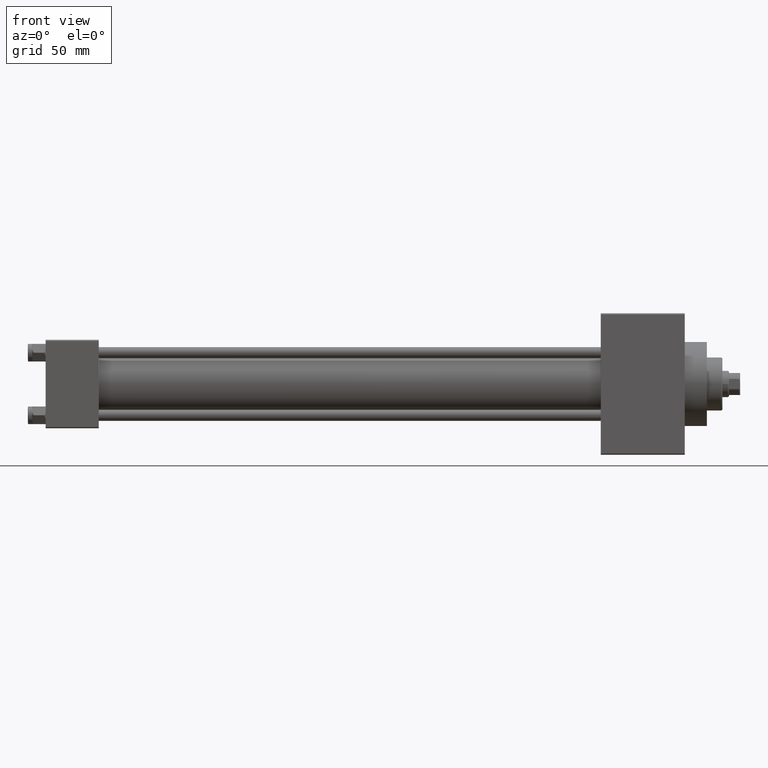
[diagram: clean part render]
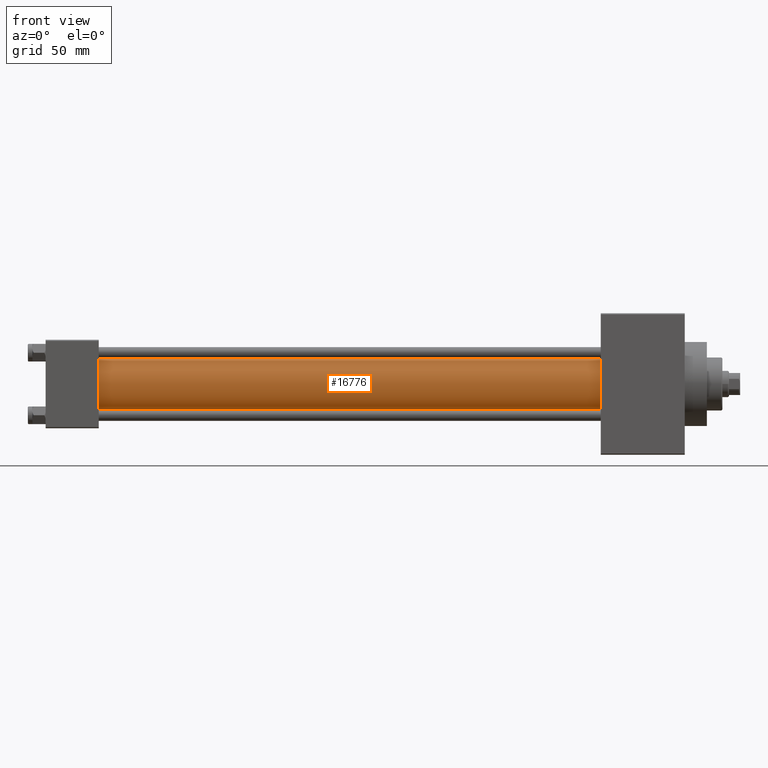
[diagram: same view with one face highlighted and labeled with its STEP entity id]
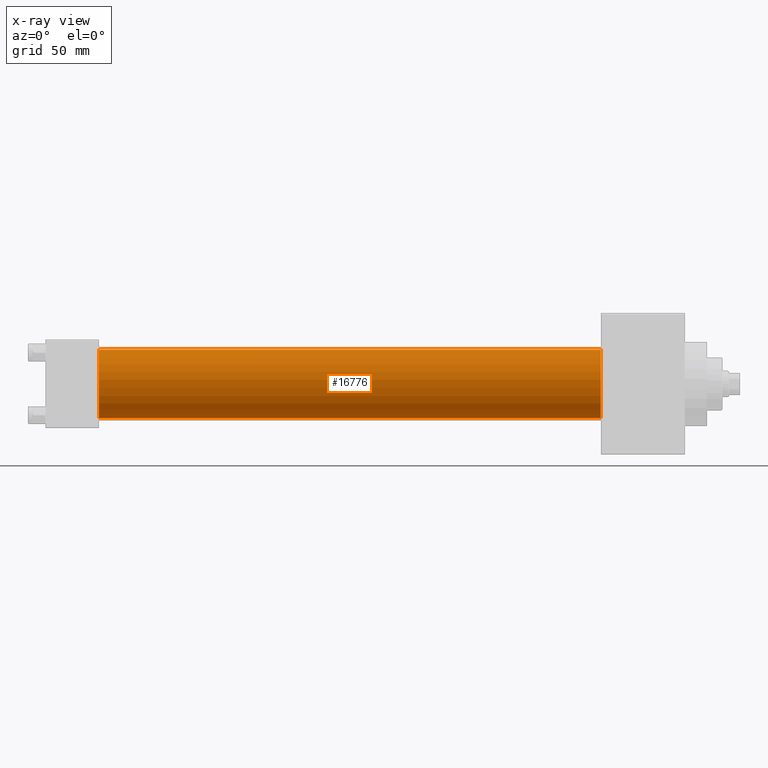
[diagram: x-ray of the same camera — body ghosted, the highlighted face saturated]
A machine part, front view. The second image highlights one B-rep face of the part: STEP entity #16776.
The next image is the same camera in x-ray: the body ghosted, the highlighted face saturated — about 0% of this face is hidden behind the body in this view.
In plain terms, the highlighted cylindrical surface (edge-blend (fillet) strip) has radius 15.5 mm, axis along (-1, -0, -0).
Its self-contained STEP definition (entity closure, byte-faithful):
#232 = DIRECTION ( 'NONE',  ( 1.000000000000000000, 0.000000000000000000, 0.000000000000000000 ) ) ;
#517 = CARTESIAN_POINT ( 'NONE',  ( 251.0000000000000000, -2.602085213965210642E-15, 15.50000000000000000 ) ) ;
#947 = DIRECTION ( 'NONE',  ( 0.000000000000000000, 0.000000000000000000, 1.000000000000000000 ) ) ;
#4190 = CARTESIAN_POINT ( 'NONE',  ( 251.0000000000000000, -2.602085213965210642E-15, 0.000000000000000000 ) ) ;
#9731 = CARTESIAN_POINT ( 'NONE',  ( 251.0000000000000000, -2.602085213965210642E-15, 15.50000000000000000 ) ) ;
#11105 = ORIENTED_EDGE ( 'NONE', *, *, #28924, .F. ) ;
#11579 = VERTEX_POINT ( 'NONE', #47221 ) ;
#11759 = VECTOR ( 'NONE', #29699, 1000.000000000000000 ) ;
#12106 = VERTEX_POINT ( 'NONE', #32994 ) ;
#13069 = EDGE_CURVE ( 'NONE', #12106, #11579, #40403, .T. ) ;
#13457 = VECTOR ( 'NONE', #21887, 1000.000000000000000 ) ;
#15206 = DIRECTION ( 'NONE',  ( 1.000000000000000000, 0.000000000000000000, 0.000000000000000000 ) ) ;
#15247 = EDGE_LOOP ( 'NONE', ( #30522, #11105, #25604, #15655 ) ) ;
#15655 = ORIENTED_EDGE ( 'NONE', *, *, #13069, .T. ) ;
#15946 = CARTESIAN_POINT ( 'NONE',  ( 251.0000000000000000, -7.038826752868134786E-16, -15.50000000000000000 ) ) ;
#16776 = ADVANCED_FACE ( 'NONE', ( #42056 ), #35098, .T. ) ;
#18645 = AXIS2_PLACEMENT_3D ( 'NONE', #4190, #15206, #29776 ) ;
#21887 = DIRECTION ( 'NONE',  ( -1.000000000000000000, -0.000000000000000000, -0.000000000000000000 ) ) ;
#25604 = ORIENTED_EDGE ( 'NONE', *, *, #38674, .T. ) ;
#28162 = CARTESIAN_POINT ( 'NONE',  ( 251.0000000000000000, -2.602085213965210642E-15, 0.000000000000000000 ) ) ;
#28924 = EDGE_CURVE ( 'NONE', #43715, #34397, #36158, .T. ) ;
#29174 = CARTESIAN_POINT ( 'NONE',  ( 23.99999999999999289, -2.602085213965210642E-15, 0.000000000000000000 ) ) ;
#29699 = DIRECTION ( 'NONE',  ( -1.000000000000000000, -0.000000000000000000, -0.000000000000000000 ) ) ;
#29776 = DIRECTION ( 'NONE',  ( 0.000000000000000000, 0.000000000000000000, -1.000000000000000000 ) ) ;
#30522 = ORIENTED_EDGE ( 'NONE', *, *, #37328, .F. ) ;
#32994 = CARTESIAN_POINT ( 'NONE',  ( 23.99999999999999289, -2.602085213965210642E-15, 15.50000000000000000 ) ) ;
#33526 = LINE ( 'NONE', #517, #11759 ) ;
#34397 = VERTEX_POINT ( 'NONE', #15946 ) ;
#34398 = DIRECTION ( 'NONE',  ( 0.000000000000000000, 0.000000000000000000, 1.000000000000000000 ) ) ;
#35098 = CYLINDRICAL_SURFACE ( 'NONE', #35927, 15.50000000000000000 ) ;
#35927 = AXIS2_PLACEMENT_3D ( 'NONE', #28162, #38229, #34398 ) ;
#36158 = CIRCLE ( 'NONE', #18645, 15.50000000000000000 ) ;
#37328 = EDGE_CURVE ( 'NONE', #34397, #11579, #40301, .T. ) ;
#38115 = AXIS2_PLACEMENT_3D ( 'NONE', #29174, #232, #947 ) ;
#38229 = DIRECTION ( 'NONE',  ( -1.000000000000000000, -0.000000000000000000, -0.000000000000000000 ) ) ;
#38674 = EDGE_CURVE ( 'NONE', #43715, #12106, #33526, .T. ) ;
#40301 = LINE ( 'NONE', #43876, #13457 ) ;
#40403 = CIRCLE ( 'NONE', #38115, 15.50000000000000000 ) ;
#42056 = FACE_OUTER_BOUND ( 'NONE', #15247, .T. ) ;
#43715 = VERTEX_POINT ( 'NONE', #9731 ) ;
#43876 = CARTESIAN_POINT ( 'NONE',  ( 251.0000000000000000, -7.038826752868134786E-16, -15.50000000000000000 ) ) ;
#47221 = CARTESIAN_POINT ( 'NONE',  ( 23.99999999999999289, -7.038826752868134786E-16, -15.50000000000000000 ) ) ;